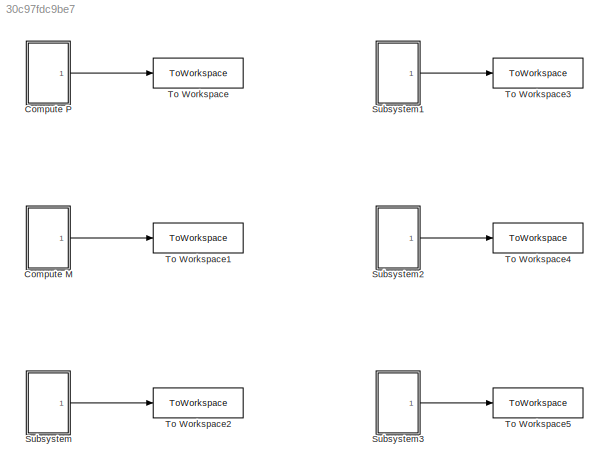
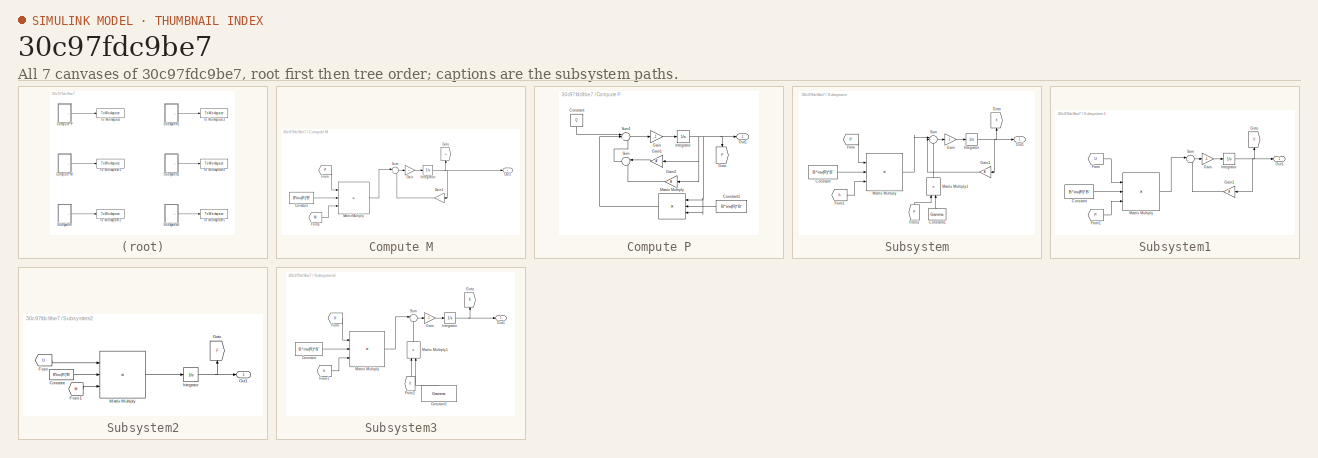
[diagram: thumbnail index - all 7 canvases of the model, root first then tree order]
MODEL slx_30c97fdc9be7
KIND model
CONFIG AbsTol = auto
CONFIG EnableMultiTasking = off
CONFIG FixedStep = 0.01
CONFIG MaxStep = auto
CONFIG MinStep = auto
CONFIG RelTol = 1e-3
CONFIG SampleTimeConstraint = Unconstrained
CONFIG Solver = ode45
CONFIG SolverName = ode45
CONFIG StartTime = 0.0
CONFIG StopTime = 0.7
BLOCK [SubSystem] Compute M
  Ports = [0, 1]
  RequestExecContextInheritance = off
BLOCK [Constant] Compute M/Constant
  Value = B*inv(R)*B'
BLOCK [From] Compute M/From
  GotoTag = P
  TagVisibility = global
BLOCK [From] Compute M/From1
  GotoTag = M
  TagVisibility = global
BLOCK [Gain] Compute M/Gain
  Gain = -1
  OutDataTypeStr = Inherit: Inherit via internal rule
  ParamDataTypeStr = Inherit: Inherit via internal rule
  SaturateOnIntegerOverflow = off
BLOCK [Gain] Compute M/Gain1
  Gain = A'
  Multiplication = Matrix(K*u)
  OutDataTypeStr = Inherit: Inherit via internal rule
  ParamDataTypeStr = Inherit: Inherit via internal rule
  SaturateOnIntegerOverflow = off
BLOCK [Goto] Compute M/Goto
  GotoTag = M
  TagVisibility = global
BLOCK [Integrator] Compute M/Integrator
  InitialCondition = [0;1;0]
  Ports = [1, 1]
BLOCK [Product] Compute M/Matrix Multiply
  InputSameDT = off
  Inputs = 3
  Multiplication = Matrix(*)
  OutDataTypeStr = Inherit: Inherit via internal rule
  Ports = [3, 1]
  RndMeth = Floor
  SaturateOnIntegerOverflow = off
BLOCK [Outport] Compute M/Out1
  IconDisplay = Port number
  VectorParamsAs1DForOutWhenUnconnected = on
BLOCK [Sum] Compute M/Sum
  IconShape = round
  InputSameDT = off
  Inputs = |+-
  OutDataTypeStr = Inherit: Inherit via internal rule
  Ports = [2, 1]
  SaturateOnIntegerOverflow = off
BLOCK [SubSystem] Compute P
  Ports = [0, 1]
  RequestExecContextInheritance = off
BLOCK [Constant] Compute P/Constant
  Value = Q
BLOCK [Constant] Compute P/Constant1
  Value = B*inv(R)*B'
BLOCK [Gain] Compute P/Gain
  Gain = -1
  OutDataTypeStr = Inherit: Inherit via internal rule
  ParamDataTypeStr = Inherit: Inherit via internal rule
  SaturateOnIntegerOverflow = off
BLOCK [Gain] Compute P/Gain1
  Gain = A'
  Multiplication = Matrix(K*u)
  OutDataTypeStr = Inherit: Inherit via internal rule
  ParamDataTypeStr = Inherit: Inherit via internal rule
  SaturateOnIntegerOverflow = off
BLOCK [Gain] Compute P/Gain2
  Gain = A
  Multiplication = Matrix(u*K)
  OutDataTypeStr = Inherit: Inherit via internal rule
  ParamDataTypeStr = Inherit: Inherit via internal rule
  SaturateOnIntegerOverflow = off
BLOCK [Goto] Compute P/Goto
  GotoTag = P
  TagVisibility = global
BLOCK [Integrator] Compute P/Integrator
  InitialCondition = zeros(3,3)
  Ports = [1, 1]
BLOCK [Product] Compute P/Matrix Multiply
  InputSameDT = off
  Inputs = 3
  Multiplication = Matrix(*)
  OutDataTypeStr = Inherit: Inherit via internal rule
  Ports = [3, 1]
  RndMeth = Floor
  SaturateOnIntegerOverflow = off
BLOCK [Outport] Compute P/Out1
  IconDisplay = Port number
  VectorParamsAs1DForOutWhenUnconnected = on
BLOCK [Sum] Compute P/Sum
  IconShape = round
  InputSameDT = off
  Inputs = |++
  OutDataTypeStr = Inherit: Inherit via internal rule
  Ports = [2, 1]
  SaturateOnIntegerOverflow = off
BLOCK [Sum] Compute P/Sum1
  IconShape = round
  InputSameDT = off
  Inputs = |-+-
  OutDataTypeStr = Inherit: Inherit via internal rule
  Ports = [3, 1]
  SaturateOnIntegerOverflow = off
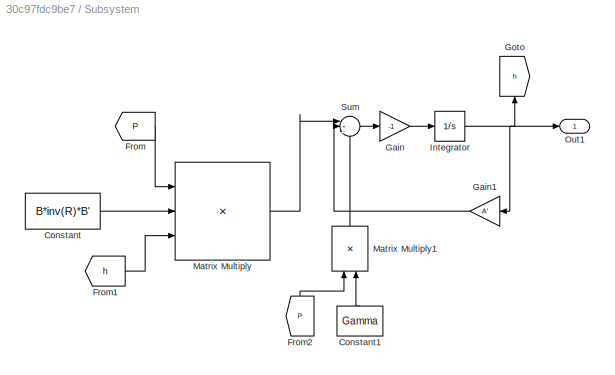
BLOCK [SubSystem] Subsystem
  Ports = [0, 1]
  RequestExecContextInheritance = off
BLOCK [Constant] Subsystem/Constant
  Value = B*inv(R)*B'
BLOCK [Constant] Subsystem/Constant1
  Value = Gamma
BLOCK [From] Subsystem/From
  GotoTag = P
  TagVisibility = global
BLOCK [From] Subsystem/From1
  GotoTag = h
  TagVisibility = global
BLOCK [From] Subsystem/From2
  GotoTag = P
  TagVisibility = global
BLOCK [Gain] Subsystem/Gain
  Gain = -1
  OutDataTypeStr = Inherit: Inherit via internal rule
  ParamDataTypeStr = Inherit: Inherit via internal rule
  SaturateOnIntegerOverflow = off
BLOCK [Gain] Subsystem/Gain1
  Gain = A'
  Multiplication = Matrix(K*u)
  OutDataTypeStr = Inherit: Inherit via internal rule
  ParamDataTypeStr = Inherit: Inherit via internal rule
  SaturateOnIntegerOverflow = off
BLOCK [Goto] Subsystem/Goto
  GotoTag = h
  TagVisibility = global
BLOCK [Integrator] Subsystem/Integrator
  InitialCondition = [0;0;0]
  Ports = [1, 1]
BLOCK [Product] Subsystem/Matrix Multiply
  InputSameDT = off
  Inputs = 3
  Multiplication = Matrix(*)
  OutDataTypeStr = Inherit: Inherit via internal rule
  Ports = [3, 1]
  RndMeth = Floor
  SaturateOnIntegerOverflow = off
BLOCK [Product] Subsystem/Matrix Multiply1
  InputSameDT = off
  Multiplication = Matrix(*)
  OutDataTypeStr = Inherit: Inherit via internal rule
  Ports = [2, 1]
  RndMeth = Floor
  SaturateOnIntegerOverflow = off
BLOCK [Outport] Subsystem/Out1
  IconDisplay = Port number
  VectorParamsAs1DForOutWhenUnconnected = on
BLOCK [Sum] Subsystem/Sum
  IconShape = round
  InputSameDT = off
  Inputs = |+-+
  OutDataTypeStr = Inherit: Inherit via internal rule
  Ports = [3, 1]
  SaturateOnIntegerOverflow = off
BLOCK [SubSystem] Subsystem1
  Ports = [0, 1]
  RequestExecContextInheritance = off
BLOCK [Constant] Subsystem1/Constant
  Value = B*inv(R)*B'
BLOCK [From] Subsystem1/From
  GotoTag = U
  TagVisibility = global
BLOCK [From] Subsystem1/From1
  GotoTag = P
  TagVisibility = global
BLOCK [Gain] Subsystem1/Gain
  Gain = -1
  OutDataTypeStr = Inherit: Inherit via internal rule
  ParamDataTypeStr = Inherit: Inherit via internal rule
  SaturateOnIntegerOverflow = off
BLOCK [Gain] Subsystem1/Gain1
  Gain = A
  Multiplication = Matrix(u*K)
  OutDataTypeStr = Inherit: Inherit via internal rule
  ParamDataTypeStr = Inherit: Inherit via internal rule
  SaturateOnIntegerOverflow = off
BLOCK [Goto] Subsystem1/Goto
  GotoTag = U
  TagVisibility = global
BLOCK [Integrator] Subsystem1/Integrator
  InitialCondition = [0 1 0]
  Ports = [1, 1]
BLOCK [Product] Subsystem1/Matrix Multiply
  InputSameDT = off
  Inputs = 3
  Multiplication = Matrix(*)
  OutDataTypeStr = Inherit: Inherit via internal rule
  Ports = [3, 1]
  RndMeth = Floor
  SaturateOnIntegerOverflow = off
BLOCK [Outport] Subsystem1/Out1
  IconDisplay = Port number
  VectorParamsAs1DForOutWhenUnconnected = on
BLOCK [Sum] Subsystem1/Sum
  IconShape = round
  InputSameDT = off
  Inputs = |+-
  OutDataTypeStr = Inherit: Inherit via internal rule
  Ports = [2, 1]
  SaturateOnIntegerOverflow = off
BLOCK [SubSystem] Subsystem2
  Ports = [0, 1]
  RequestExecContextInheritance = off
BLOCK [Constant] Subsystem2/Constant
  Value = B*inv(R)*B'
BLOCK [From] Subsystem2/From
  GotoTag = U
  TagVisibility = global
BLOCK [From] Subsystem2/From1
  GotoTag = M
  TagVisibility = global
BLOCK [Goto] Subsystem2/Goto
  GotoTag = F
  TagVisibility = global
BLOCK [Integrator] Subsystem2/Integrator
  Ports = [1, 1]
BLOCK [Product] Subsystem2/Matrix Multiply
  InputSameDT = off
  Inputs = 3
  Multiplication = Matrix(*)
  OutDataTypeStr = Inherit: Inherit via internal rule
  Ports = [3, 1]
  RndMeth = Floor
  SaturateOnIntegerOverflow = off
BLOCK [Outport] Subsystem2/Out1
  IconDisplay = Port number
  VectorParamsAs1DForOutWhenUnconnected = on
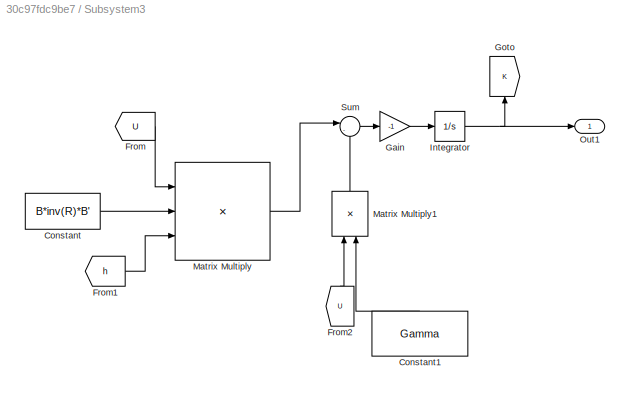
BLOCK [SubSystem] Subsystem3
  Ports = [0, 1]
  RequestExecContextInheritance = off
BLOCK [Constant] Subsystem3/Constant
  Value = B*inv(R)*B'
BLOCK [Constant] Subsystem3/Constant1
  Value = Gamma
BLOCK [From] Subsystem3/From
  GotoTag = U
  TagVisibility = global
BLOCK [From] Subsystem3/From1
  GotoTag = h
  TagVisibility = global
BLOCK [From] Subsystem3/From2
  GotoTag = U
  TagVisibility = global
BLOCK [Gain] Subsystem3/Gain
  Gain = -1
  OutDataTypeStr = Inherit: Inherit via internal rule
  ParamDataTypeStr = Inherit: Inherit via internal rule
  SaturateOnIntegerOverflow = off
BLOCK [Goto] Subsystem3/Goto
  GotoTag = K
  TagVisibility = global
BLOCK [Integrator] Subsystem3/Integrator
  Ports = [1, 1]
BLOCK [Product] Subsystem3/Matrix Multiply
  InputSameDT = off
  Inputs = 3
  Multiplication = Matrix(*)
  OutDataTypeStr = Inherit: Inherit via internal rule
  Ports = [3, 1]
  RndMeth = Floor
  SaturateOnIntegerOverflow = off
BLOCK [Product] Subsystem3/Matrix Multiply1
  InputSameDT = off
  Multiplication = Matrix(*)
  OutDataTypeStr = Inherit: Inherit via internal rule
  Ports = [2, 1]
  RndMeth = Floor
  SaturateOnIntegerOverflow = off
BLOCK [Outport] Subsystem3/Out1
  IconDisplay = Port number
  VectorParamsAs1DForOutWhenUnconnected = on
BLOCK [Sum] Subsystem3/Sum
  IconShape = round
  InputSameDT = off
  Inputs = |--
  OutDataTypeStr = Inherit: Inherit via internal rule
  Ports = [2, 1]
  SaturateOnIntegerOverflow = off
BLOCK [ToWorkspace] To Workspace
  FixptAsFi = on
  MaxDataPoints = inf
  Ports = [1]
  SampleTime = -1
  VariableName = P
BLOCK [ToWorkspace] To Workspace1
  FixptAsFi = on
  MaxDataPoints = inf
  Ports = [1]
  SampleTime = -1
  VariableName = M
BLOCK [ToWorkspace] To Workspace2
  FixptAsFi = on
  MaxDataPoints = inf
  Ports = [1]
  SampleTime = -1
  VariableName = h
BLOCK [ToWorkspace] To Workspace3
  FixptAsFi = on
  MaxDataPoints = inf
  Ports = [1]
  SampleTime = -1
  VariableName = U
BLOCK [ToWorkspace] To Workspace4
  FixptAsFi = on
  MaxDataPoints = inf
  Ports = [1]
  SampleTime = -1
  VariableName = F
BLOCK [ToWorkspace] To Workspace5
  FixptAsFi = on
  MaxDataPoints = inf
  Ports = [1]
  SampleTime = -1
  VariableName = K
LINE Compute M/Constant:1 -> Compute M/Matrix Multiply:2
LINE Compute M/From1:1 -> Compute M/Matrix Multiply:3
LINE Compute M/From:1 -> Compute M/Matrix Multiply:1
LINE Compute M/Gain1:1 -> Compute M/Sum:2
LINE Compute M/Gain:1 -> Compute M/Integrator:1
NET Compute M/Integrator:1 -> Compute M/Gain1:1, Compute M/Goto:1, Compute M/Out1:1
LINE Compute M/Matrix Multiply:1 -> Compute M/Sum:1
LINE Compute M/Sum:1 -> Compute M/Gain:1
LINE Compute M:1 -> To Workspace1:1
LINE Compute P/Constant1:1 -> Compute P/Matrix Multiply:2
LINE Compute P/Constant:1 -> Compute P/Sum1:1
LINE Compute P/Gain1:1 -> Compute P/Sum:1
LINE Compute P/Gain2:1 -> Compute P/Sum:2
LINE Compute P/Gain:1 -> Compute P/Integrator:1
NET Compute P/Integrator:1 -> Compute P/Gain1:1, Compute P/Gain2:1, Compute P/Goto:1, Compute P/Matrix Multiply:1, Compute P/Matrix Multiply:3, Compute P/Out1:1
LINE Compute P/Matrix Multiply:1 -> Compute P/Sum1:2
LINE Compute P/Sum1:1 -> Compute P/Gain:1
LINE Compute P/Sum:1 -> Compute P/Sum1:3
LINE Compute P:1 -> To Workspace:1
LINE Subsystem/Constant1:1 -> Subsystem/Matrix Multiply1:2
LINE Subsystem/Constant:1 -> Subsystem/Matrix Multiply:2
LINE Subsystem/From1:1 -> Subsystem/Matrix Multiply:3
LINE Subsystem/From2:1 -> Subsystem/Matrix Multiply1:1
LINE Subsystem/From:1 -> Subsystem/Matrix Multiply:1
LINE Subsystem/Gain1:1 -> Subsystem/Sum:2
LINE Subsystem/Gain:1 -> Subsystem/Integrator:1
NET Subsystem/Integrator:1 -> Subsystem/Gain1:1, Subsystem/Goto:1, Subsystem/Out1:1
LINE Subsystem/Matrix Multiply1:1 -> Subsystem/Sum:3
LINE Subsystem/Matrix Multiply:1 -> Subsystem/Sum:1
LINE Subsystem/Sum:1 -> Subsystem/Gain:1
LINE Subsystem1/Constant:1 -> Subsystem1/Matrix Multiply:2
LINE Subsystem1/From1:1 -> Subsystem1/Matrix Multiply:3
LINE Subsystem1/From:1 -> Subsystem1/Matrix Multiply:1
LINE Subsystem1/Gain1:1 -> Subsystem1/Sum:2
LINE Subsystem1/Gain:1 -> Subsystem1/Integrator:1
NET Subsystem1/Integrator:1 -> Subsystem1/Gain1:1, Subsystem1/Goto:1, Subsystem1/Out1:1
LINE Subsystem1/Matrix Multiply:1 -> Subsystem1/Sum:1
LINE Subsystem1/Sum:1 -> Subsystem1/Gain:1
LINE Subsystem1:1 -> To Workspace3:1
LINE Subsystem2/Constant:1 -> Subsystem2/Matrix Multiply:2
LINE Subsystem2/From1:1 -> Subsystem2/Matrix Multiply:3
LINE Subsystem2/From:1 -> Subsystem2/Matrix Multiply:1
NET Subsystem2/Integrator:1 -> Subsystem2/Goto:1, Subsystem2/Out1:1
LINE Subsystem2/Matrix Multiply:1 -> Subsystem2/Integrator:1
LINE Subsystem2:1 -> To Workspace4:1
LINE Subsystem3/Constant1:1 -> Subsystem3/Matrix Multiply1:2
LINE Subsystem3/Constant:1 -> Subsystem3/Matrix Multiply:2
LINE Subsystem3/From1:1 -> Subsystem3/Matrix Multiply:3
LINE Subsystem3/From2:1 -> Subsystem3/Matrix Multiply1:1
LINE Subsystem3/From:1 -> Subsystem3/Matrix Multiply:1
LINE Subsystem3/Gain:1 -> Subsystem3/Integrator:1
NET Subsystem3/Integrator:1 -> Subsystem3/Goto:1, Subsystem3/Out1:1
LINE Subsystem3/Matrix Multiply1:1 -> Subsystem3/Sum:2
LINE Subsystem3/Matrix Multiply:1 -> Subsystem3/Sum:1
LINE Subsystem3/Sum:1 -> Subsystem3/Gain:1
LINE Subsystem3:1 -> To Workspace5:1
LINE Subsystem:1 -> To Workspace2:1
note: NET lines group one-source signal fan-out (src -> all destinations, sorted); 1:1 wires keep LINE
